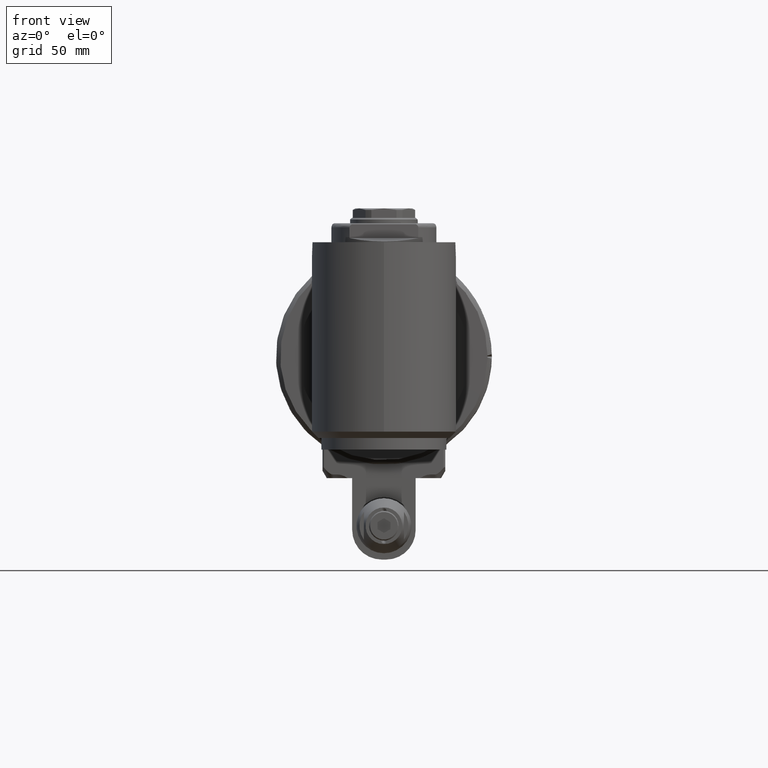
[diagram: clean part render]
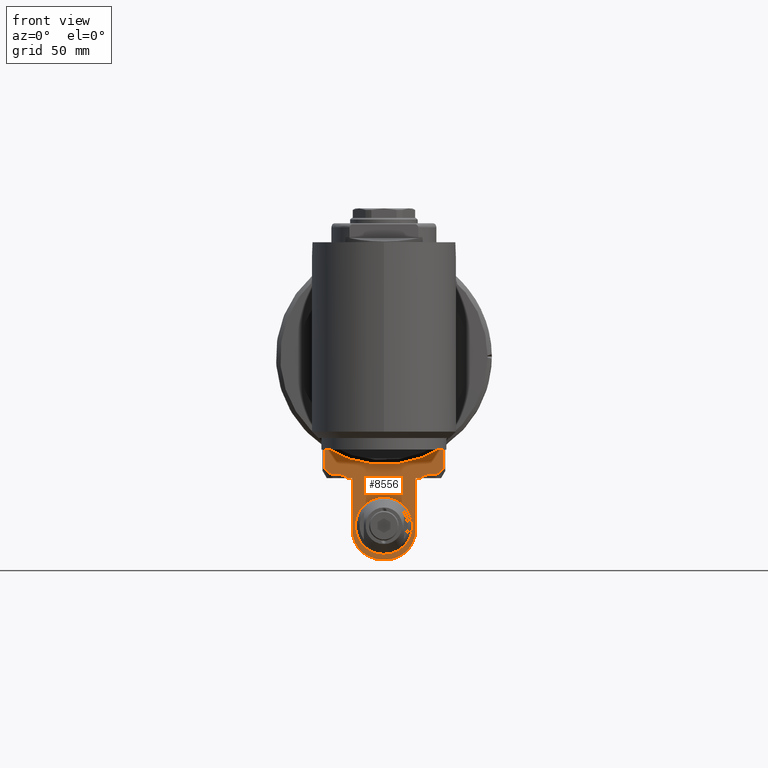
[diagram: same view with one face highlighted and labeled with its STEP entity id]
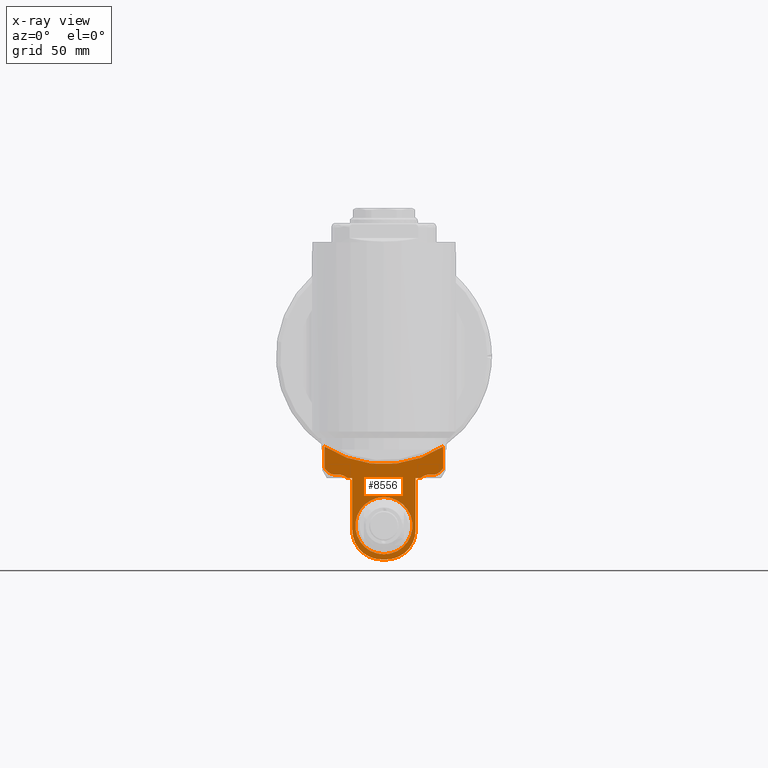
[diagram: x-ray of the same camera — body ghosted, the highlighted face saturated]
A machine part, front view. The second image highlights one B-rep face of the part: STEP entity #8556.
The next image is the same camera in x-ray: the body ghosted, the highlighted face saturated — about 0% of this face is hidden behind the body in this view.
In plain terms, the highlighted planar face has unit normal (0, 1, 0).
Its self-contained STEP definition (entity closure, byte-faithful):
#96=B_SPLINE_CURVE_WITH_KNOTS('',3,(#13602,#13603,#13604,#13605,#13606,
#13607,#13608,#13609,#13610,#13611,#13612,#13613,#13614,#13615,#13616,#13617,
#13618,#13619,#13620,#13621,#13622,#13623,#13624,#13625,#13626,#13627,#13628,
#13629,#13630,#13631,#13632,#13633,#13634,#13635,#13636,#13637,#13638,#13639,
#13640,#13641,#13642,#13643,#13644),.UNSPECIFIED.,.F.,.F.,(4,3,3,3,3,3,
3,3,3,3,3,3,3,3,4),(0.,0.07142857142857,0.1428571428571,0.2142857142857,
0.2857142857143,0.3571428571429,0.4285714285714,0.5,0.5714285714286,0.6428571428571,
0.7142857142857,0.7857142857143,0.8571428571429,0.9285714285714,1.),
 .UNSPECIFIED.);
#97=B_SPLINE_CURVE_WITH_KNOTS('',3,(#13660,#13661,#13662,#13663,#13664,
#13665,#13666,#13667,#13668,#13669,#13670,#13671,#13672,#13673,#13674,#13675,
#13676,#13677,#13678,#13679,#13680,#13681,#13682,#13683,#13684,#13685,#13686,
#13687,#13688,#13689,#13690,#13691,#13692,#13693,#13694,#13695,#13696,#13697,
#13698,#13699,#13700,#13701,#13702),.UNSPECIFIED.,.F.,.F.,(4,3,3,3,3,3,
3,3,3,3,3,3,3,3,4),(0.,0.07142857142857,0.1428571428571,0.2142857142857,
0.2857142857143,0.3571428571429,0.4285714285714,0.5,0.5714285714286,0.6428571428571,
0.7142857142857,0.7857142857143,0.8571428571429,0.9285714285714,1.),
 .UNSPECIFIED.);
#326=(
BOUNDED_CURVE()
B_SPLINE_CURVE(2,(#13596,#13597,#13598),.UNSPECIFIED.,.F.,.F.)
B_SPLINE_CURVE_WITH_KNOTS((3,3),(1.82199492496865,2.88389892190435),
 .UNSPECIFIED.)
CURVE()
GEOMETRIC_REPRESENTATION_ITEM()
RATIONAL_B_SPLINE_CURVE((2.02058703407736,2.02058703407736,1.67390907463987))
REPRESENTATION_ITEM('')
);
#327=(
BOUNDED_CURVE()
B_SPLINE_CURVE(2,(#13706,#13707,#13708),.UNSPECIFIED.,.F.,.F.)
B_SPLINE_CURVE_WITH_KNOTS((3,3),(0.760090929890639,1.82199492496827),
 .UNSPECIFIED.)
CURVE()
GEOMETRIC_REPRESENTATION_ITEM()
RATIONAL_B_SPLINE_CURVE((1.67390907585276,2.02058703407711,2.02058703407711))
REPRESENTATION_ITEM('')
);
#455=LINE('',#13594,#1072);
#456=LINE('',#13600,#1073);
#457=LINE('',#13646,#1074);
#458=LINE('',#13648,#1075);
#459=LINE('',#13652,#1076);
#460=LINE('',#13656,#1077);
#461=LINE('',#13658,#1078);
#462=LINE('',#13704,#1079);
#463=LINE('',#13709,#1080);
#1072=VECTOR('',#10731,10.27191134395);
#1073=VECTOR('',#10732,2.000000230855);
#1074=VECTOR('',#10733,2.10102165178);
#1075=VECTOR('',#10734,24.5);
#1076=VECTOR('',#10737,2.);
#1077=VECTOR('',#10740,24.5);
#1078=VECTOR('',#10741,2.101021651743);
#1079=VECTOR('',#10742,2.000000230854);
#1080=VECTOR('',#10743,10.27191135579);
#1744=FACE_BOUND('',#2478,.T.);
#1923=FACE_OUTER_BOUND('',#2477,.T.);
#2477=EDGE_LOOP('',(#6152,#6153,#6154,#6155,#6156,#6157,#6158,#6159,#6160,
#6161,#6162,#6163,#6164,#6165,#6166,#6167));
#2478=EDGE_LOOP('',(#6168));
#3077=CIRCLE('',#9288,13.5);
#3078=CIRCLE('',#9290,51.);
#3079=CIRCLE('',#9291,14.);
#3080=CIRCLE('',#9292,14.);
#3624=VERTEX_POINT('',#13586);
#3625=VERTEX_POINT('',#13590);
#3626=VERTEX_POINT('',#13591);
#3627=VERTEX_POINT('',#13593);
#3628=VERTEX_POINT('',#13595);
#3629=VERTEX_POINT('',#13599);
#3630=VERTEX_POINT('',#13601);
#3631=VERTEX_POINT('',#13645);
#3632=VERTEX_POINT('',#13647);
#3633=VERTEX_POINT('',#13649);
#3634=VERTEX_POINT('',#13651);
#3635=VERTEX_POINT('',#13653);
#3636=VERTEX_POINT('',#13655);
#3637=VERTEX_POINT('',#13657);
#3638=VERTEX_POINT('',#13659);
#3639=VERTEX_POINT('',#13703);
#3640=VERTEX_POINT('',#13705);
#4571=EDGE_CURVE('',#3624,#3624,#3077,.T.);
#4572=EDGE_CURVE('',#3625,#3626,#3078,.T.);
#4573=EDGE_CURVE('',#3627,#3626,#455,.T.);
#4574=EDGE_CURVE('',#3628,#3627,#326,.T.);
#4575=EDGE_CURVE('',#3629,#3628,#456,.T.);
#4576=EDGE_CURVE('',#3630,#3629,#96,.T.);
#4577=EDGE_CURVE('',#3630,#3631,#457,.T.);
#4578=EDGE_CURVE('',#3632,#3631,#458,.T.);
#4579=EDGE_CURVE('',#3632,#3633,#3079,.T.);
#4580=EDGE_CURVE('',#3633,#3634,#459,.T.);
#4581=EDGE_CURVE('',#3634,#3635,#3080,.T.);
#4582=EDGE_CURVE('',#3636,#3635,#460,.T.);
#4583=EDGE_CURVE('',#3637,#3636,#461,.T.);
#4584=EDGE_CURVE('',#3638,#3637,#97,.T.);
#4585=EDGE_CURVE('',#3638,#3639,#462,.T.);
#4586=EDGE_CURVE('',#3640,#3639,#327,.T.);
#4587=EDGE_CURVE('',#3625,#3640,#463,.T.);
#6152=ORIENTED_EDGE('',*,*,#4572,.T.);
#6153=ORIENTED_EDGE('',*,*,#4573,.F.);
#6154=ORIENTED_EDGE('',*,*,#4574,.F.);
#6155=ORIENTED_EDGE('',*,*,#4575,.F.);
#6156=ORIENTED_EDGE('',*,*,#4576,.F.);
#6157=ORIENTED_EDGE('',*,*,#4577,.T.);
#6158=ORIENTED_EDGE('',*,*,#4578,.F.);
#6159=ORIENTED_EDGE('',*,*,#4579,.T.);
#6160=ORIENTED_EDGE('',*,*,#4580,.T.);
#6161=ORIENTED_EDGE('',*,*,#4581,.T.);
#6162=ORIENTED_EDGE('',*,*,#4582,.F.);
#6163=ORIENTED_EDGE('',*,*,#4583,.F.);
#6164=ORIENTED_EDGE('',*,*,#4584,.F.);
#6165=ORIENTED_EDGE('',*,*,#4585,.T.);
#6166=ORIENTED_EDGE('',*,*,#4586,.F.);
#6167=ORIENTED_EDGE('',*,*,#4587,.F.);
#6168=ORIENTED_EDGE('',*,*,#4571,.T.);
#8228=PLANE('',#9289);
#8556=ADVANCED_FACE('',(#1923,#1744),#8228,.F.);
#9288=AXIS2_PLACEMENT_3D('',#13588,#10725,#10726);
#9289=AXIS2_PLACEMENT_3D('',#13589,#10727,#10728);
#9290=AXIS2_PLACEMENT_3D('',#13592,#10729,#10730);
#9291=AXIS2_PLACEMENT_3D('',#13650,#10735,#10736);
#9292=AXIS2_PLACEMENT_3D('',#13654,#10738,#10739);
#10725=DIRECTION('center_axis',(0.,1.,0.));
#10726=DIRECTION('ref_axis',(0.,0.,-1.));
#10727=DIRECTION('center_axis',(0.,1.,0.));
#10728=DIRECTION('ref_axis',(0.,0.,1.));
#10729=DIRECTION('center_axis',(0.,1.,0.));
#10730=DIRECTION('ref_axis',(0.54901960784313,0.,-0.835809470037146));
#10731=DIRECTION('',(9.975910351665E-10,-5.763456110401E-11,1.));
#10732=DIRECTION('',(-1.,2.66453495154E-14,-3.197441941848E-14));
#10733=DIRECTION('',(1.,-6.173643013298E-12,0.));
#10734=DIRECTION('',(0.,0.,1.));
#10735=DIRECTION('center_axis',(0.,-1.,0.));
#10736=DIRECTION('ref_axis',(-1.,0.,0.));
#10737=DIRECTION('',(1.,0.,0.));
#10738=DIRECTION('center_axis',(0.,-1.,0.));
#10739=DIRECTION('ref_axis',(0.,0.,-1.));
#10740=DIRECTION('',(0.,0.,-1.));
#10741=DIRECTION('',(-1.,-1.987706754933E-12,0.));
#10742=DIRECTION('',(1.,1.421085307489E-14,-1.421085307489E-14));
#10743=DIRECTION('',(0.,0.,-1.));
#13586=CARTESIAN_POINT('',(0.,4.999999999999,-66.5));
#13588=CARTESIAN_POINT('Origin',(0.,5.,-80.));
#13589=CARTESIAN_POINT('Origin',(0.,5.,-40.75));
#13590=CARTESIAN_POINT('',(28.,5.,-42.62628297189));
#13591=CARTESIAN_POINT('',(-28.,5.,-42.62628297189));
#13592=CARTESIAN_POINT('Origin',(0.,5.,0.));
#13593=CARTESIAN_POINT('',(-28.00000001025,5.000000000592,-52.89819431585));
#13594=CARTESIAN_POINT('',(-28.00000001025,5.000000000592,-52.89819431585));
#13595=CARTESIAN_POINT('',(-24.00000023085,5.,-55.76795003158));
#13596=CARTESIAN_POINT('Ctrl Pts',(-24.00000023085,5.,-55.7679500315809));
#13597=CARTESIAN_POINT('Ctrl Pts',(-25.6568543568477,5.,-55.767950031581));
#13598=CARTESIAN_POINT('Ctrl Pts',(-28.0000000098928,5.,-52.8981943155583));
#13599=CARTESIAN_POINT('',(-22.,5.,-55.76795003158));
#13600=CARTESIAN_POINT('',(-22.,5.,-55.76795003158));
#13601=CARTESIAN_POINT('',(-17.10102165173,5.,-57.5));
#13602=CARTESIAN_POINT('Ctrl Pts',(-17.1010216517776,5.00000000001866,-57.4999999999964));
#13603=CARTESIAN_POINT('Ctrl Pts',(-17.2370960770872,5.00000000001981,-57.4076296385157));
#13604=CARTESIAN_POINT('Ctrl Pts',(-17.3712443754437,5.00000063826511,-57.3198292289405));
#13605=CARTESIAN_POINT('Ctrl Pts',(-17.5032960233649,4.99999999999894,-57.2365356717594));
#13606=CARTESIAN_POINT('Ctrl Pts',(-17.6353476712861,4.99999936173277,-57.1532421145783));
#13607=CARTESIAN_POINT('Ctrl Pts',(-17.7653017558429,4.99999976097404,-57.07445397365));
#13608=CARTESIAN_POINT('Ctrl Pts',(-17.8933393385786,4.99999999999946,-56.9998736177974));
#13609=CARTESIAN_POINT('Ctrl Pts',(-18.0213769213144,5.00000023902488,-56.9252932619447));
#13610=CARTESIAN_POINT('Ctrl Pts',(-18.1474979749992,5.00000036732544,-56.8549206586993));
#13611=CARTESIAN_POINT('Ctrl Pts',(-18.271884613759,4.99999999999806,-56.7884806085114));
#13612=CARTESIAN_POINT('Ctrl Pts',(-18.3962712525189,4.99999963267068,-56.7220405583235));
#13613=CARTESIAN_POINT('Ctrl Pts',(-18.5189232155615,4.99999955443188,-56.6595325839633));
#13614=CARTESIAN_POINT('Ctrl Pts',(-18.6401351342318,4.99999999999971,-56.6006566526068));
#13615=CARTESIAN_POINT('Ctrl Pts',(-18.7613470529021,5.00000044556755,-56.5417807212504));
#13616=CARTESIAN_POINT('Ctrl Pts',(-18.8811193017054,5.00000010396237,-56.4865376199346));
#13617=CARTESIAN_POINT('Ctrl Pts',(-18.9995465623321,4.99999999999894,-56.4347528279972));
#13618=CARTESIAN_POINT('Ctrl Pts',(-19.1179738229586,4.9999998960355,-56.38296803606));
#13619=CARTESIAN_POINT('Ctrl Pts',(-19.2350560029498,5.00000049548863,-56.3346412798112));
#13620=CARTESIAN_POINT('Ctrl Pts',(-19.3509523952866,4.99999999999977,-56.2895799988169));
#13621=CARTESIAN_POINT('Ctrl Pts',(-19.4668487876234,4.99999950451091,-56.2445187178225));
#13622=CARTESIAN_POINT('Ctrl Pts',(-19.5815590395692,4.99999934661283,-56.2027220605333));
#13623=CARTESIAN_POINT('Ctrl Pts',(-19.6954495887651,4.99999999999934,-56.1639628886921));
#13624=CARTESIAN_POINT('Ctrl Pts',(-19.809340137961,5.00000065338585,-56.1252037168508));
#13625=CARTESIAN_POINT('Ctrl Pts',(-19.9224113658348,5.00000016489167,-56.0894831792463));
#13626=CARTESIAN_POINT('Ctrl Pts',(-20.0347424678853,4.99999999999926,-56.0567087420254));
#13627=CARTESIAN_POINT('Ctrl Pts',(-20.1470735699356,4.99999983510686,-56.0239343048046));
#13628=CARTESIAN_POINT('Ctrl Pts',(-20.2586645867612,4.99999984216059,-55.9941060584166));
#13629=CARTESIAN_POINT('Ctrl Pts',(-20.3695708123531,5.00000000000021,-55.9671414087033));
#13630=CARTESIAN_POINT('Ctrl Pts',(-20.4804770379453,5.00000015783982,-55.9401767589898));
#13631=CARTESIAN_POINT('Ctrl Pts',(-20.590698459308,5.00000065768272,-55.9160755953994));
#13632=CARTESIAN_POINT('Ctrl Pts',(-20.7003160679017,4.99999999999926,-55.8947526142738));
#13633=CARTESIAN_POINT('Ctrl Pts',(-20.8099336764955,4.9999993423158,-55.8734296331481));
#13634=CARTESIAN_POINT('Ctrl Pts',(-20.9189472639065,4.99999921320605,-55.8548838538798));
#13635=CARTESIAN_POINT('Ctrl Pts',(-21.0276785824769,4.99999999999769,-55.8390187354647));
#13636=CARTESIAN_POINT('Ctrl Pts',(-21.1364099010472,5.00000078678934,-55.8231536170496));
#13637=CARTESIAN_POINT('Ctrl Pts',(-21.2448591170366,5.00000045334748,-55.8099703387025));
#13638=CARTESIAN_POINT('Ctrl Pts',(-21.3530557211469,4.99999999999773,-55.799443705463));
#13639=CARTESIAN_POINT('Ctrl Pts',(-21.4612523252571,4.99999954664797,-55.7889170722234));
#13640=CARTESIAN_POINT('Ctrl Pts',(-21.5691962930083,4.99999960793601,-55.7810467177909));
#13641=CARTESIAN_POINT('Ctrl Pts',(-21.6770070621958,4.99999999999765,-55.775804796723));
#13642=CARTESIAN_POINT('Ctrl Pts',(-21.7848178313834,5.0000003920593,-55.7705628756552));
#13643=CARTESIAN_POINT('Ctrl Pts',(-21.89249542055,4.99999999999806,-55.7679500315811));
#13644=CARTESIAN_POINT('Ctrl Pts',(-22.,4.99999999999806,-55.7679500315811));
#13645=CARTESIAN_POINT('',(-15.,5.,-57.5));
#13646=CARTESIAN_POINT('',(-17.10102165178,5.000000000013,-57.5));
#13647=CARTESIAN_POINT('',(-15.,5.,-82.));
#13648=CARTESIAN_POINT('',(-15.,5.,-82.));
#13649=CARTESIAN_POINT('',(-1.,5.,-96.));
#13650=CARTESIAN_POINT('Origin',(-1.,5.,-82.));
#13651=CARTESIAN_POINT('',(1.,5.,-96.));
#13652=CARTESIAN_POINT('',(-1.,5.,-96.));
#13653=CARTESIAN_POINT('',(15.,5.,-82.));
#13654=CARTESIAN_POINT('Origin',(1.,5.,-82.));
#13655=CARTESIAN_POINT('',(15.,5.,-57.5));
#13656=CARTESIAN_POINT('',(15.,5.,-57.5));
#13657=CARTESIAN_POINT('',(17.10102165173,5.000000000002,-57.5));
#13658=CARTESIAN_POINT('',(17.10102165174,5.000000000004,-57.5));
#13659=CARTESIAN_POINT('',(22.,5.,-55.76795003158));
#13660=CARTESIAN_POINT('Ctrl Pts',(22.,4.99999999999806,-55.7679500315811));
#13661=CARTESIAN_POINT('Ctrl Pts',(21.89249652983,4.99999999999806,-55.7679500315811));
#13662=CARTESIAN_POINT('Ctrl Pts',(21.7848202841119,5.00000039105243,-55.7705628190918));
#13663=CARTESIAN_POINT('Ctrl Pts',(21.6770110360658,4.99999999999845,-55.7758046034851));
#13664=CARTESIAN_POINT('Ctrl Pts',(21.5692017880199,4.99999960894447,-55.7810463878784));
#13665=CARTESIAN_POINT('Ctrl Pts',(21.4612595190799,4.99999954908136,-55.7889165264463));
#13666=CARTESIAN_POINT('Ctrl Pts',(21.3530649609601,5.00000000000015,-55.7994428065832));
#13667=CARTESIAN_POINT('Ctrl Pts',(21.2448704028402,5.00000045091893,-55.8099690867202));
#13668=CARTESIAN_POINT('Ctrl Pts',(21.1364235797047,5.00000078438734,-55.823151871078));
#13669=CARTESIAN_POINT('Ctrl Pts',(21.027694271625,4.99999999999995,-55.8390164460684));
#13670=CARTESIAN_POINT('Ctrl Pts',(20.9189649635453,4.99999921561255,-55.8548810210587));
#13671=CARTESIAN_POINT('Ctrl Pts',(20.8099530048027,4.99999934353884,-55.8734262109241));
#13672=CARTESIAN_POINT('Ctrl Pts',(20.7003367621035,4.99999999999856,-55.8947485890508));
#13673=CARTESIAN_POINT('Ctrl Pts',(20.5907205194042,5.00000065645829,-55.9160709671776));
#13674=CARTESIAN_POINT('Ctrl Pts',(20.4805002015672,5.00000015249107,-55.9401715158422));
#13675=CARTESIAN_POINT('Ctrl Pts',(20.3695953498182,4.99999999999976,-55.9671354428885));
#13676=CARTESIAN_POINT('Ctrl Pts',(20.2586904980693,4.99999984750845,-55.9940993699348));
#13677=CARTESIAN_POINT('Ctrl Pts',(20.1471011257002,4.99999985031155,-56.0239267887722));
#13678=CARTESIAN_POINT('Ctrl Pts',(20.0347731852336,4.99999999999954,-56.0566997798819));
#13679=CARTESIAN_POINT('Ctrl Pts',(19.9224452447668,5.00000014968753,-56.0894727709917));
#13680=CARTESIAN_POINT('Ctrl Pts',(19.8093786892635,5.00000063695026,-56.1251912210989));
#13681=CARTESIAN_POINT('Ctrl Pts',(19.6954899228098,5.00000000000082,-56.1639491619562));
#13682=CARTESIAN_POINT('Ctrl Pts',(19.5816011563561,4.99999936305138,-56.2027071028135));
#13683=CARTESIAN_POINT('Ctrl Pts',(19.4668898065583,4.99999951124021,-56.2445034114553));
#13684=CARTESIAN_POINT('Ctrl Pts',(19.3509914156563,5.00000000000088,-56.2895648278296));
#13685=CARTESIAN_POINT('Ctrl Pts',(19.2350930247544,5.00000048876155,-56.3346262442037));
#13686=CARTESIAN_POINT('Ctrl Pts',(19.1180079435412,4.99999989233225,-56.3829536158029));
#13687=CARTESIAN_POINT('Ctrl Pts',(18.9995778612352,5.00000000000004,-56.4347391420132));
#13688=CARTESIAN_POINT('Ctrl Pts',(18.8811477789289,5.00000010766784,-56.4865246682236));
#13689=CARTESIAN_POINT('Ctrl Pts',(18.7613727874742,5.00000045525001,-56.5417686217666));
#13690=CARTESIAN_POINT('Ctrl Pts',(18.6401589499798,5.00000000000065,-56.6006450845429));
#13691=CARTESIAN_POINT('Ctrl Pts',(18.5189451124855,4.99999954475128,-56.6595215473192));
#13692=CARTESIAN_POINT('Ctrl Pts',(18.396292048344,4.99999961958453,-56.7220297191525));
#13693=CARTESIAN_POINT('Ctrl Pts',(18.2719026073854,4.99999999999881,-56.7884709974808));
#13694=CARTESIAN_POINT('Ctrl Pts',(18.1475131664269,5.00000038041309,-56.8549122758092));
#13695=CARTESIAN_POINT('Ctrl Pts',(18.021387620799,5.00000024682464,-56.9252871590293));
#13696=CARTESIAN_POINT('Ctrl Pts',(17.8933465844767,4.99999999999984,-56.9998693971305));
#13697=CARTESIAN_POINT('Ctrl Pts',(17.7653055481547,4.99999975317504,-57.0744516352316));
#13698=CARTESIAN_POINT('Ctrl Pts',(17.6353490420072,4.99999936035982,-57.1532412503509));
#13699=CARTESIAN_POINT('Ctrl Pts',(17.5032961839134,5.00000000000094,-57.2365355704955));
#13700=CARTESIAN_POINT('Ctrl Pts',(17.3712433258193,5.00000063964206,-57.3198298906403));
#13701=CARTESIAN_POINT('Ctrl Pts',(17.2370950280782,5.00000000000824,-57.4076303505873));
#13702=CARTESIAN_POINT('Ctrl Pts',(17.1010216517398,5.00000000000456,-57.4999999999997));
#13703=CARTESIAN_POINT('',(24.00000023085,5.,-55.76795003158));
#13704=CARTESIAN_POINT('',(22.,5.,-55.76795003158));
#13705=CARTESIAN_POINT('',(28.,5.,-52.89819432768));
#13706=CARTESIAN_POINT('Ctrl Pts',(27.9999999999956,5.,-52.8981943276764));
#13707=CARTESIAN_POINT('Ctrl Pts',(25.6568543539489,5.,-55.7679500315775));
#13708=CARTESIAN_POINT('Ctrl Pts',(24.00000023085,5.,-55.7679500315775));
#13709=CARTESIAN_POINT('',(28.,5.,-42.62628297189));